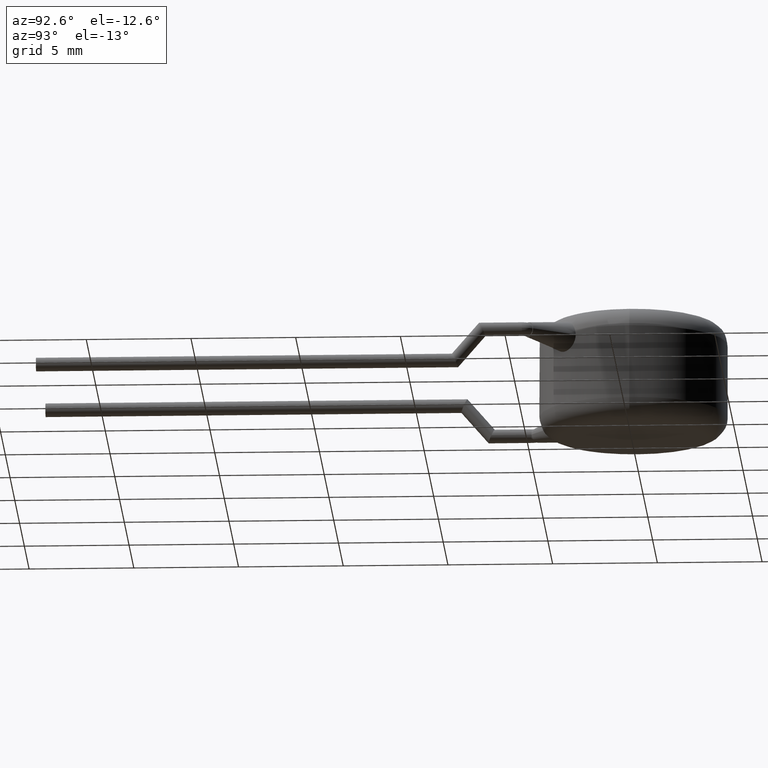
[diagram: clean part render]
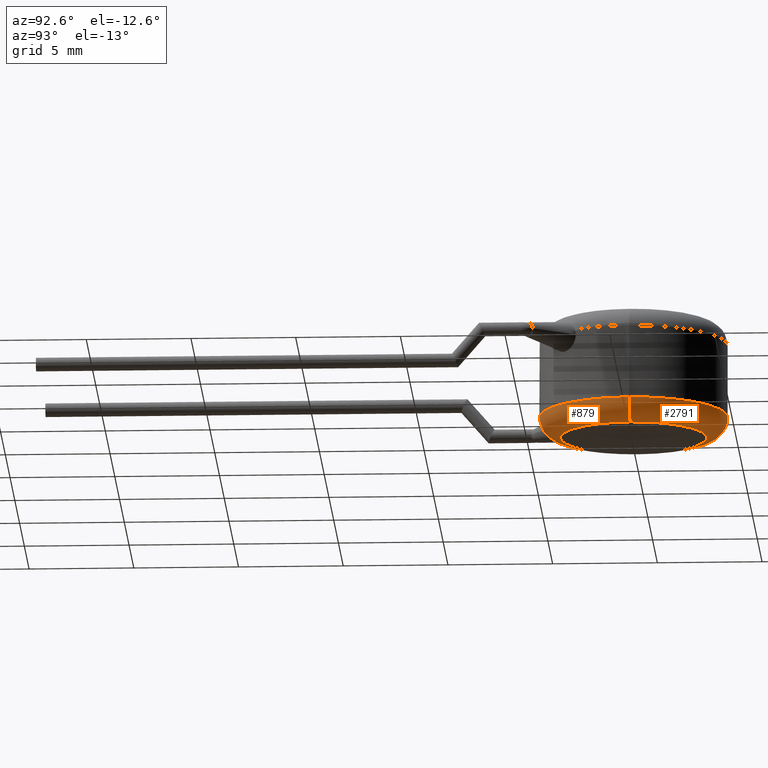
[diagram: same view with one multi-face feature highlighted, each face labeled with its STEP entity id]
A machine part, auxiliary view. The highlighted faces form ONE feature: a constant-radius fillet chain: 2 tangent blend faces with common blend radius 1 mm. The faces share edges in the B-rep.
Their STEP definitions:
[1] entity #879 (Torus):
#160 = VERTEX_POINT ( 'NONE', #363 ) ;
#181 = AXIS2_PLACEMENT_3D ( 'NONE', #2850, #3476, #2534 ) ;
#245 = CARTESIAN_POINT ( 'NONE',  ( -3.215069661348276300, -2.962667632175302500, 0.5058711379627489600 ) ) ;
#282 = CARTESIAN_POINT ( 'NONE',  ( -3.537774627374338500, -2.731539401841065500, 0.7321653313683376100 ) ) ;
#323 = VERTEX_POINT ( 'NONE', #3077 ) ;
#328 = CARTESIAN_POINT ( 'NONE',  ( -3.648708616503523800, -2.633804364764577200, 1.000000000000000000 ) ) ;
#356 = EDGE_CURVE ( 'NONE', #961, #2280, #3285, .T. ) ;
#363 = CARTESIAN_POINT ( 'NONE',  ( -2.682986095145545800, -3.612697830327864100, 0.9999999999999981100 ) ) ;
#368 = TOROIDAL_SURFACE ( 'NONE', #2342, 3.499999999999999600, 1.000000000000000000 ) ;
#404 = CARTESIAN_POINT ( 'NONE',  ( 0.0000000000000000000, 0.0000000000000000000, 1.000000000000000000 ) ) ;
#609 = ORIENTED_EDGE ( 'NONE', *, *, #2383, .F. ) ;
#693 = ORIENTED_EDGE ( 'NONE', *, *, #3714, .T. ) ;
#831 = CARTESIAN_POINT ( 'NONE',  ( 3.499999999999999600, 0.0000000000000000000, 1.000000000000000000 ) ) ;
#879 = ADVANCED_FACE ( 'NONE', ( #2155 ), #368, .T. ) ;
#880 = CARTESIAN_POINT ( 'NONE',  ( -2.778457072696070500, -3.501578080557174600, 0.7334479558469353400 ) ) ;
#925 = CARTESIAN_POINT ( 'NONE',  ( -2.916615913242142500, -3.298463240625551000, 0.5568879072802872500 ) ) ;
#961 = VERTEX_POINT ( 'NONE', #3290 ) ;
#1001 = VERTEX_POINT ( 'NONE', #328 ) ;
#1027 = CARTESIAN_POINT ( 'NONE',  ( 0.0000000000000000000, 0.0000000000000000000, 0.0000000000000000000 ) ) ;
#1064 = AXIS2_PLACEMENT_3D ( 'NONE', #1791, #1522, #4154 ) ;
#1169 = DIRECTION ( 'NONE',  ( 0.0000000000000000000, -1.000000000000000000, 0.0000000000000000000 ) ) ;
#1177 = ORIENTED_EDGE ( 'NONE', *, *, #1614, .T. ) ;
#1250 = CARTESIAN_POINT ( 'NONE',  ( -3.648708616503523800, -2.633804364764577200, 1.000000000000000000 ) ) ;
#1522 = DIRECTION ( 'NONE',  ( 0.0000000000000000000, 0.0000000000000000000, 1.000000000000000000 ) ) ;
#1570 = CARTESIAN_POINT ( 'NONE',  ( -3.004456836488970800, -3.176445053992540800, 0.5063731170401119000 ) ) ;
#1589 = CARTESIAN_POINT ( 'NONE',  ( -2.682986095145545800, -3.612697830327864100, 0.9999999999999981100 ) ) ;
#1614 = EDGE_CURVE ( 'NONE', #160, #1001, #3260, .T. ) ;
#1791 = CARTESIAN_POINT ( 'NONE',  ( 0.0000000000000000000, 0.0000000000000000000, 1.000000000000000000 ) ) ;
#1868 = AXIS2_PLACEMENT_3D ( 'NONE', #1027, #2393, #3391 ) ;
#1894 = DIRECTION ( 'NONE',  ( 1.000000000000000000, 0.0000000000000000000, 0.0000000000000000000 ) ) ;
#2145 = DIRECTION ( 'NONE',  ( 1.000000000000000000, 0.0000000000000000000, 0.0000000000000000000 ) ) ;
#2155 = FACE_OUTER_BOUND ( 'NONE', #3534, .T. ) ;
#2280 = VERTEX_POINT ( 'NONE', #3678 ) ;
#2315 = EDGE_CURVE ( 'NONE', #323, #961, #3934, .T. ) ;
#2317 = CIRCLE ( 'NONE', #4205, 4.500000000000000000 ) ;
#2342 = AXIS2_PLACEMENT_3D ( 'NONE', #3864, #4202, #1894 ) ;
#2383 = EDGE_CURVE ( 'NONE', #2280, #1001, #2317, .T. ) ;
#2393 = DIRECTION ( 'NONE',  ( -0.0000000000000000000, -0.0000000000000000000, -1.000000000000000000 ) ) ;
#2534 = DIRECTION ( 'NONE',  ( -1.000000000000000000, 1.224646799147353000E-016, 0.0000000000000000000 ) ) ;
#2552 = AXIS2_PLACEMENT_3D ( 'NONE', #831, #1169, #2788 ) ;
#2585 = CARTESIAN_POINT ( 'NONE',  ( -3.337098885401192000, -2.872082357204981000, 0.5566935471733051000 ) ) ;
#2623 = ORIENTED_EDGE ( 'NONE', *, *, #2315, .F. ) ;
#2788 = DIRECTION ( 'NONE',  ( 0.0000000000000000000, 0.0000000000000000000, -1.000000000000000000 ) ) ;
#2822 = CARTESIAN_POINT ( 'NONE',  ( 4.500000000000000000, 5.510910596163088600E-016, 1.000000000000000000 ) ) ;
#2850 = CARTESIAN_POINT ( 'NONE',  ( -3.499999999999999600, 4.286263797015736100E-016, 1.000000000000000000 ) ) ;
#2911 = ORIENTED_EDGE ( 'NONE', *, *, #356, .F. ) ;
#2989 = EDGE_CURVE ( 'NONE', #160, #3162, #4077, .T. ) ;
#3077 = CARTESIAN_POINT ( 'NONE',  ( 3.499999999999999600, 0.0000000000000000000, 0.0000000000000000000 ) ) ;
#3091 = ORIENTED_EDGE ( 'NONE', *, *, #2989, .F. ) ;
#3113 = DIRECTION ( 'NONE',  ( 0.0000000000000000000, 0.0000000000000000000, 1.000000000000000000 ) ) ;
#3162 = VERTEX_POINT ( 'NONE', #2822 ) ;
#3260 = B_SPLINE_CURVE_WITH_KNOTS ( 'NONE', 3,
 ( #1589, #3888, #880, #925, #1570, #245, #2585, #282, #3856, #1250 ),
 .UNSPECIFIED., .F., .F.,
 ( 4, 2, 2, 2, 4 ),
 ( 2.106087963521312100E-007, 0.0004503929778220486300, 0.0009005753468477451100, 0.001350757715873441600, 0.001800940084899138100 ),
 .UNSPECIFIED. ) ;
#3285 = CIRCLE ( 'NONE', #181, 1.000000000000000000 ) ;
#3290 = CARTESIAN_POINT ( 'NONE',  ( -3.499999999999999600, 4.898587196589412800E-016, 0.0000000000000000000 ) ) ;
#3391 = DIRECTION ( 'NONE',  ( 1.000000000000000000, 0.0000000000000000000, 0.0000000000000000000 ) ) ;
#3476 = DIRECTION ( 'NONE',  ( 1.224646799147353200E-016, 1.000000000000000000, -0.0000000000000000000 ) ) ;
#3534 = EDGE_LOOP ( 'NONE', ( #2911, #2623, #693, #3091, #1177, #609 ) ) ;
#3678 = CARTESIAN_POINT ( 'NONE',  ( -4.500000000000000000, 0.0000000000000000000, 1.000000000000000000 ) ) ;
#3695 = CIRCLE ( 'NONE', #2552, 1.000000000000000000 ) ;
#3714 = EDGE_CURVE ( 'NONE', #323, #3162, #3695, .T. ) ;
#3856 = CARTESIAN_POINT ( 'NONE',  ( -3.617194009312647600, -2.677462739831095300, 0.8574704393103862500 ) ) ;
#3864 = CARTESIAN_POINT ( 'NONE',  ( 0.0000000000000000000, 0.0000000000000000000, 1.000000000000000000 ) ) ;
#3888 = CARTESIAN_POINT ( 'NONE',  ( -2.726202070651294800, -3.580603294107114600, 0.8575084063494921000 ) ) ;
#3934 = CIRCLE ( 'NONE', #1868, 3.499999999999999600 ) ;
#4077 = CIRCLE ( 'NONE', #1064, 4.500000000000000000 ) ;
#4154 = DIRECTION ( 'NONE',  ( 1.000000000000000000, 0.0000000000000000000, 0.0000000000000000000 ) ) ;
#4202 = DIRECTION ( 'NONE',  ( 0.0000000000000000000, 0.0000000000000000000, 1.000000000000000000 ) ) ;
#4205 = AXIS2_PLACEMENT_3D ( 'NONE', #404, #3113, #2145 ) ;
[2] entity #2791 (Torus):
#136 = DIRECTION ( 'NONE',  ( 0.0000000000000000000, 0.0000000000000000000, 1.000000000000000000 ) ) ;
#156 = CARTESIAN_POINT ( 'NONE',  ( 0.0000000000000000000, 0.0000000000000000000, 1.000000000000000000 ) ) ;
#181 = AXIS2_PLACEMENT_3D ( 'NONE', #2850, #3476, #2534 ) ;
#323 = VERTEX_POINT ( 'NONE', #3077 ) ;
#356 = EDGE_CURVE ( 'NONE', #961, #2280, #3285, .T. ) ;
#678 = CIRCLE ( 'NONE', #2653, 4.500000000000000000 ) ;
#831 = CARTESIAN_POINT ( 'NONE',  ( 3.499999999999999600, 0.0000000000000000000, 1.000000000000000000 ) ) ;
#881 = TOROIDAL_SURFACE ( 'NONE', #2082, 3.499999999999999600, 1.000000000000000000 ) ;
#961 = VERTEX_POINT ( 'NONE', #3290 ) ;
#1169 = DIRECTION ( 'NONE',  ( 0.0000000000000000000, -1.000000000000000000, 0.0000000000000000000 ) ) ;
#1233 = FACE_OUTER_BOUND ( 'NONE', #1651, .T. ) ;
#1366 = DIRECTION ( 'NONE',  ( 1.000000000000000000, 0.0000000000000000000, 0.0000000000000000000 ) ) ;
#1483 = EDGE_CURVE ( 'NONE', #961, #323, #2550, .T. ) ;
#1506 = ORIENTED_EDGE ( 'NONE', *, *, #1483, .F. ) ;
#1602 = DIRECTION ( 'NONE',  ( -0.0000000000000000000, -0.0000000000000000000, -1.000000000000000000 ) ) ;
#1651 = EDGE_LOOP ( 'NONE', ( #1506, #1672, #4067, #3912 ) ) ;
#1672 = ORIENTED_EDGE ( 'NONE', *, *, #356, .T. ) ;
#1972 = DIRECTION ( 'NONE',  ( 1.000000000000000000, 0.0000000000000000000, 0.0000000000000000000 ) ) ;
#2082 = AXIS2_PLACEMENT_3D ( 'NONE', #156, #136, #2204 ) ;
#2204 = DIRECTION ( 'NONE',  ( 1.000000000000000000, 0.0000000000000000000, 0.0000000000000000000 ) ) ;
#2280 = VERTEX_POINT ( 'NONE', #3678 ) ;
#2534 = DIRECTION ( 'NONE',  ( -1.000000000000000000, 1.224646799147353000E-016, 0.0000000000000000000 ) ) ;
#2550 = CIRCLE ( 'NONE', #3267, 3.499999999999999600 ) ;
#2552 = AXIS2_PLACEMENT_3D ( 'NONE', #831, #1169, #2788 ) ;
#2612 = EDGE_CURVE ( 'NONE', #3162, #2280, #678, .T. ) ;
#2653 = AXIS2_PLACEMENT_3D ( 'NONE', #3313, #3362, #1366 ) ;
#2788 = DIRECTION ( 'NONE',  ( 0.0000000000000000000, 0.0000000000000000000, -1.000000000000000000 ) ) ;
#2791 = ADVANCED_FACE ( 'NONE', ( #1233 ), #881, .T. ) ;
#2822 = CARTESIAN_POINT ( 'NONE',  ( 4.500000000000000000, 5.510910596163088600E-016, 1.000000000000000000 ) ) ;
#2850 = CARTESIAN_POINT ( 'NONE',  ( -3.499999999999999600, 4.286263797015736100E-016, 1.000000000000000000 ) ) ;
#2945 = CARTESIAN_POINT ( 'NONE',  ( 0.0000000000000000000, 0.0000000000000000000, 0.0000000000000000000 ) ) ;
#3077 = CARTESIAN_POINT ( 'NONE',  ( 3.499999999999999600, 0.0000000000000000000, 0.0000000000000000000 ) ) ;
#3162 = VERTEX_POINT ( 'NONE', #2822 ) ;
#3267 = AXIS2_PLACEMENT_3D ( 'NONE', #2945, #1602, #1972 ) ;
#3285 = CIRCLE ( 'NONE', #181, 1.000000000000000000 ) ;
#3290 = CARTESIAN_POINT ( 'NONE',  ( -3.499999999999999600, 4.898587196589412800E-016, 0.0000000000000000000 ) ) ;
#3313 = CARTESIAN_POINT ( 'NONE',  ( 0.0000000000000000000, 0.0000000000000000000, 1.000000000000000000 ) ) ;
#3362 = DIRECTION ( 'NONE',  ( 0.0000000000000000000, 0.0000000000000000000, 1.000000000000000000 ) ) ;
#3476 = DIRECTION ( 'NONE',  ( 1.224646799147353200E-016, 1.000000000000000000, -0.0000000000000000000 ) ) ;
#3678 = CARTESIAN_POINT ( 'NONE',  ( -4.500000000000000000, 0.0000000000000000000, 1.000000000000000000 ) ) ;
#3695 = CIRCLE ( 'NONE', #2552, 1.000000000000000000 ) ;
#3714 = EDGE_CURVE ( 'NONE', #323, #3162, #3695, .T. ) ;
#3912 = ORIENTED_EDGE ( 'NONE', *, *, #3714, .F. ) ;
#4067 = ORIENTED_EDGE ( 'NONE', *, *, #2612, .F. ) ;